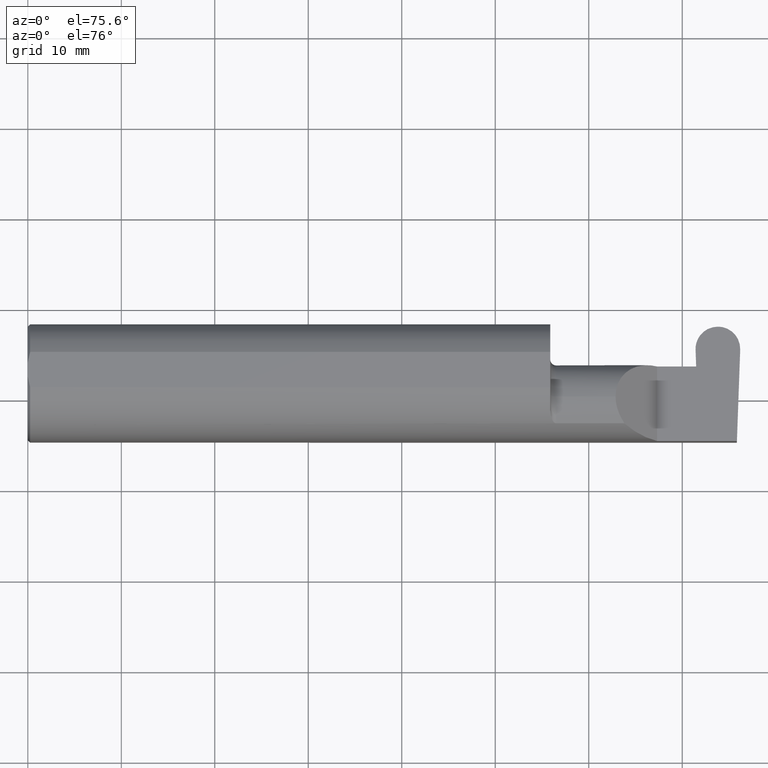
[diagram: clean part render]
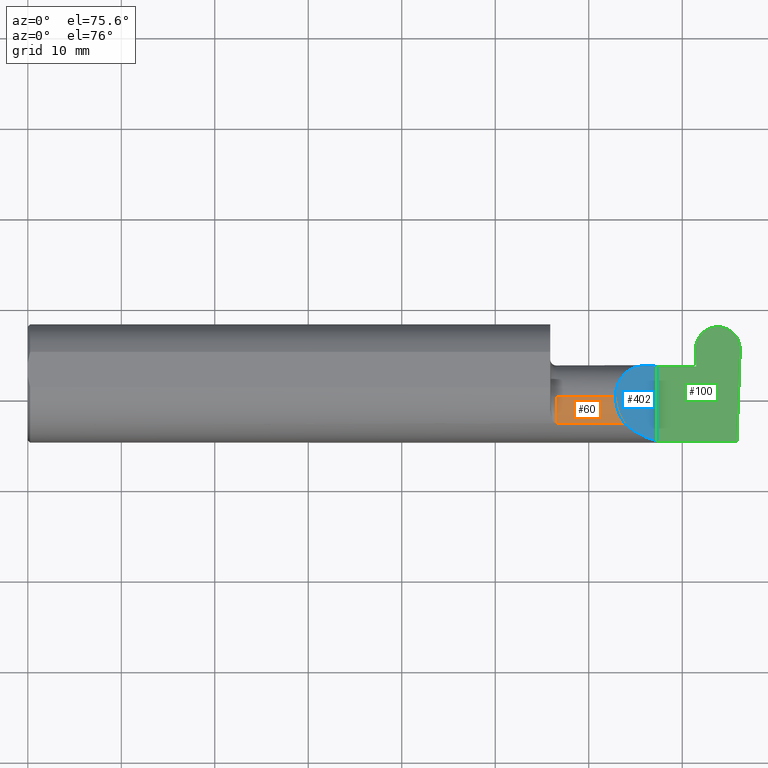
[diagram: same view with three faces highlighted in distinct colors, each labeled with its STEP entity id]
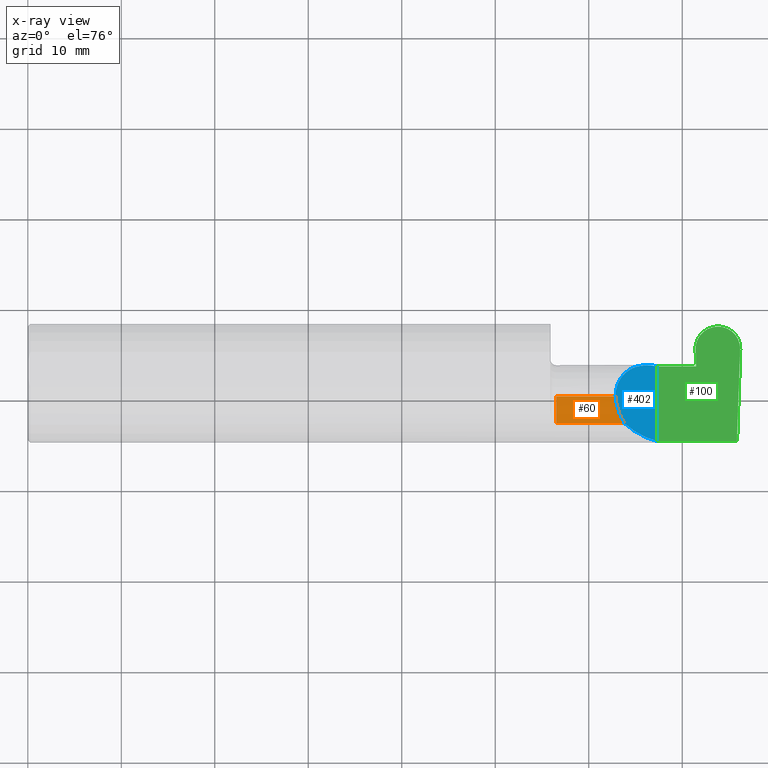
[diagram: x-ray of the same camera — body ghosted, the three highlighted faces saturated]
A machine part, auxiliary view with three faces highlighted in distinct colors.
The next image is the same camera in x-ray (body ghosted, the three faces saturated) — at least one of them is partly hidden behind the body in this view.
Their STEP definitions:

[orange] entity #60 — the highlighted cylindrical surface (partial cylindrical patch) has radius 4.445 mm, axis along (-1, -0, -0).
#20 = CARTESIAN_POINT ( 'NONE',  ( 2.511704467739031887, -0.2080850024789288877, 0.1382955322609669413 ) ) ;
#29 = ORIENTED_EDGE ( 'NONE', *, *, #774, .T. ) ;
#51 = VECTOR ( 'NONE', #525, 39.37007874015748143 ) ;
#57 = ORIENTED_EDGE ( 'NONE', *, *, #73, .T. ) ;
#60 = ADVANCED_FACE ( 'NONE', ( #639 ), #579, .T. ) ;
#61 = DIRECTION ( 'NONE',  ( 0.000000000000000000, 0.000000000000000000, 1.000000000000000000 ) ) ;
#64 = EDGE_LOOP ( 'NONE', ( #351, #57, #678, #29 ) ) ;
#73 = EDGE_CURVE ( 'NONE', #188, #95, #571, .T. ) ;
#95 = VERTEX_POINT ( 'NONE', #143 ) ;
#125 = VECTOR ( 'NONE', #757, 39.37007874015748143 ) ;
#140 = CARTESIAN_POINT ( 'NONE',  ( 2.225000000000000089, -0.1008500000000000091, 0.000000000000000000 ) ) ;
#143 = CARTESIAN_POINT ( 'NONE',  ( 2.225000000000000089, -0.1008500000000000368, 0.1750000000000000167 ) ) ;
#167 = AXIS2_PLACEMENT_3D ( 'NONE', #502, #633, #61 ) ;
#178 = VERTEX_POINT ( 'NONE', #20 ) ;
#188 = VERTEX_POINT ( 'NONE', #602 ) ;
#217 = CARTESIAN_POINT ( 'NONE',  ( 2.487690731615565642, -0.1771157075472508391, 0.1623092683844331863 ) ) ;
#255 = CARTESIAN_POINT ( 'NONE',  ( 2.200000000000000178, -0.1008500000000000091, 0.1750000000000000444 ) ) ;
#274 = DIRECTION ( 'NONE',  ( 0.000000000000000000, 0.000000000000000000, 1.000000000000000000 ) ) ;
#326 = EDGE_CURVE ( 'NONE', #178, #188, #374, .T. ) ;
#347 = VERTEX_POINT ( 'NONE', #583 ) ;
#351 = ORIENTED_EDGE ( 'NONE', *, *, #326, .T. ) ;
#374 =( BOUNDED_CURVE ( )  B_SPLINE_CURVE ( 3, ( #775, #217, #647, #408 ),
 .UNSPECIFIED., .F., .F. ) 
 B_SPLINE_CURVE_WITH_KNOTS ( ( 4, 4 ),
 ( 5.623622464215682015, 6.283185307179586232 ),
 .UNSPECIFIED. ) 
 CURVE ( )  GEOMETRIC_REPRESENTATION_ITEM ( )  RATIONAL_B_SPLINE_CURVE ( ( 1.000000000000000000, 0.9640754331822832812, 0.9640754331822832812, 1.000000000000000000 ) ) 
 REPRESENTATION_ITEM ( '' )  );
#408 = CARTESIAN_POINT ( 'NONE',  ( 2.474999999999998757, -0.1008500000000000091, 0.1750000000000000444 ) ) ;
#478 = LINE ( 'NONE', #590, #51 ) ;
#502 = CARTESIAN_POINT ( 'NONE',  ( 2.200000000000000178, -0.1008500000000000091, 0.000000000000000000 ) ) ;
#525 = DIRECTION ( 'NONE',  ( 1.000000000000000000, 0.000000000000000000, 0.000000000000000000 ) ) ;
#553 = CIRCLE ( 'NONE', #659, 0.1750000000000000167 ) ;
#571 = LINE ( 'NONE', #255, #125 ) ;
#579 = CYLINDRICAL_SURFACE ( 'NONE', #167, 0.1750000000000000444 ) ;
#583 = CARTESIAN_POINT ( 'NONE',  ( 2.225000000000000089, -0.2080850024789289987, 0.1382955322609667470 ) ) ;
#590 = CARTESIAN_POINT ( 'NONE',  ( 2.518342309999999529, -0.2080850024789289987, 0.1382955322609668025 ) ) ;
#602 = CARTESIAN_POINT ( 'NONE',  ( 2.474999999999998757, -0.1008500000000000091, 0.1750000000000000444 ) ) ;
#633 = DIRECTION ( 'NONE',  ( -1.000000000000000000, -0.000000000000000000, -0.000000000000000000 ) ) ;
#639 = FACE_OUTER_BOUND ( 'NONE', #64, .T. ) ;
#647 = CARTESIAN_POINT ( 'NONE',  ( 2.474999999999998757, -0.1400387324517230747, 0.1750000000000000444 ) ) ;
#659 = AXIS2_PLACEMENT_3D ( 'NONE', #140, #795, #274 ) ;
#678 = ORIENTED_EDGE ( 'NONE', *, *, #732, .F. ) ;
#732 = EDGE_CURVE ( 'NONE', #347, #95, #553, .T. ) ;
#757 = DIRECTION ( 'NONE',  ( -1.000000000000000000, -0.000000000000000000, -0.000000000000000000 ) ) ;
#774 = EDGE_CURVE ( 'NONE', #347, #178, #478, .T. ) ;
#775 = CARTESIAN_POINT ( 'NONE',  ( 2.511704467739031887, -0.2080850024789288877, 0.1382955322609669413 ) ) ;
#795 = DIRECTION ( 'NONE',  ( -1.000000000000000000, -0.000000000000000000, -0.000000000000000000 ) ) ;

[blue] entity #402 — the highlighted planar face has unit normal (-0.7071, 0, -0.7071).
#20 = CARTESIAN_POINT ( 'NONE',  ( 2.511704467739031887, -0.2080850024789288877, 0.1382955322609669413 ) ) ;
#36 = DIRECTION ( 'NONE',  ( -0.7071067811865439090, 0.000000000000000000, -0.7071067811865511255 ) ) ;
#46 = EDGE_CURVE ( 'NONE', #448, #178, #739, .T. ) ;
#113 = PLANE ( 'NONE',  #814 ) ;
#130 = ORIENTED_EDGE ( 'NONE', *, *, #46, .F. ) ;
#139 = DIRECTION ( 'NONE',  ( -0.000000000000000000, 1.000000000000000000, -0.000000000000000000 ) ) ;
#152 = VECTOR ( 'NONE', #139, 39.37007874015748143 ) ;
#172 = CARTESIAN_POINT ( 'NONE',  ( 2.650000000000000355, 0.07414999999999999369, 9.797174393178813824E-17 ) ) ;
#178 = VERTEX_POINT ( 'NONE', #20 ) ;
#188 = VERTEX_POINT ( 'NONE', #602 ) ;
#212 = EDGE_CURVE ( 'NONE', #448, #454, #535, .T. ) ;
#217 = CARTESIAN_POINT ( 'NONE',  ( 2.487690731615565642, -0.1771157075472508391, 0.1623092683844331863 ) ) ;
#218 = CARTESIAN_POINT ( 'NONE',  ( 2.650000000000000355, -0.2500000000000000555, 4.286263797015729199E-17 ) ) ;
#294 = CARTESIAN_POINT ( 'NONE',  ( 2.547487373415290968, 0.07415000000000000757, 0.1025126265847084162 ) ) ;
#326 = EDGE_CURVE ( 'NONE', #178, #188, #374, .T. ) ;
#328 = CARTESIAN_POINT ( 'NONE',  ( 2.511704467739031887, -0.2080850024789288877, 0.1382955322609669413 ) ) ;
#342 = CARTESIAN_POINT ( 'NONE',  ( 2.650000000000000355, 0.07414999999999999369, 9.797174393178813824E-17 ) ) ;
#374 =( BOUNDED_CURVE ( )  B_SPLINE_CURVE ( 3, ( #775, #217, #647, #408 ),
 .UNSPECIFIED., .F., .F. ) 
 B_SPLINE_CURVE_WITH_KNOTS ( ( 4, 4 ),
 ( 5.623622464215682015, 6.283185307179586232 ),
 .UNSPECIFIED. ) 
 CURVE ( )  GEOMETRIC_REPRESENTATION_ITEM ( )  RATIONAL_B_SPLINE_CURVE ( ( 1.000000000000000000, 0.9640754331822832812, 0.9640754331822832812, 1.000000000000000000 ) ) 
 REPRESENTATION_ITEM ( '' )  );
#377 = ORIENTED_EDGE ( 'NONE', *, *, #326, .F. ) ;
#379 = CARTESIAN_POINT ( 'NONE',  ( 2.650000000000000355, -0.2498499999999999610, 4.286263797015729199E-17 ) ) ;
#390 = EDGE_LOOP ( 'NONE', ( #377, #130, #663, #686 ) ) ;
#402 = ADVANCED_FACE ( 'NONE', ( #474 ), #113, .F. ) ;
#404 = CARTESIAN_POINT ( 'NONE',  ( 2.474999999999998757, 0.001662626584708354381, 0.1750000000000000167 ) ) ;
#408 = CARTESIAN_POINT ( 'NONE',  ( 2.474999999999998757, -0.1008500000000000091, 0.1750000000000000444 ) ) ;
#448 = VERTEX_POINT ( 'NONE', #679 ) ;
#454 = VERTEX_POINT ( 'NONE', #172 ) ;
#474 = FACE_OUTER_BOUND ( 'NONE', #390, .T. ) ;
#535 = LINE ( 'NONE', #218, #152 ) ;
#555 = DIRECTION ( 'NONE',  ( -0.7071067811865511255, 0.000000000000000000, 0.7071067811865439090 ) ) ;
#592 =( BOUNDED_CURVE ( )  B_SPLINE_CURVE ( 3, ( #778, #404, #294, #342 ),
 .UNSPECIFIED., .F., .F. ) 
 B_SPLINE_CURVE_WITH_KNOTS ( ( 4, 4 ),
 ( 0.000000000000000000, 1.570796326794896336 ),
 .UNSPECIFIED. ) 
 CURVE ( )  GEOMETRIC_REPRESENTATION_ITEM ( )  RATIONAL_B_SPLINE_CURVE ( ( 1.000000000000000000, 0.8047378541243650485, 0.8047378541243650485, 1.000000000000000000 ) ) 
 REPRESENTATION_ITEM ( '' )  );
#602 = CARTESIAN_POINT ( 'NONE',  ( 2.474999999999998757, -0.1008500000000000091, 0.1750000000000000444 ) ) ;
#647 = CARTESIAN_POINT ( 'NONE',  ( 2.474999999999998757, -0.1400387324517230747, 0.1750000000000000444 ) ) ;
#663 = ORIENTED_EDGE ( 'NONE', *, *, #212, .T. ) ;
#679 = CARTESIAN_POINT ( 'NONE',  ( 2.650000000000000355, -0.2498499999999999610, 4.286263797015729199E-17 ) ) ;
#686 = ORIENTED_EDGE ( 'NONE', *, *, #747, .F. ) ;
#694 = CARTESIAN_POINT ( 'NONE',  ( 2.552984868485331571, -0.2355204011147991605, 0.09701513151466779894 ) ) ;
#739 =( BOUNDED_CURVE ( )  B_SPLINE_CURVE ( 3, ( #379, #753, #694, #328 ),
 .UNSPECIFIED., .F., .F. ) 
 B_SPLINE_CURVE_WITH_KNOTS ( ( 4, 4 ),
 ( 4.712388980384689674, 5.298966915116348986 ),
 .UNSPECIFIED. ) 
 CURVE ( )  GEOMETRIC_REPRESENTATION_ITEM ( )  RATIONAL_B_SPLINE_CURVE ( ( 1.000000000000000000, 0.9715321379117536349, 0.9715321379117536349, 1.000000000000000000 ) ) 
 REPRESENTATION_ITEM ( '' )  );
#747 = EDGE_CURVE ( 'NONE', #188, #454, #592, .T. ) ;
#748 = CARTESIAN_POINT ( 'NONE',  ( 2.650000000000000355, -0.2500000000000000555, 4.286263797015729199E-17 ) ) ;
#753 = CARTESIAN_POINT ( 'NONE',  ( 2.600434159100402987, -0.2498499999999999610, 0.04956584089959713973 ) ) ;
#775 = CARTESIAN_POINT ( 'NONE',  ( 2.511704467739031887, -0.2080850024789288877, 0.1382955322609669413 ) ) ;
#778 = CARTESIAN_POINT ( 'NONE',  ( 2.474999999999998757, -0.1008500000000000091, 0.1750000000000000444 ) ) ;
#814 = AXIS2_PLACEMENT_3D ( 'NONE', #748, #36, #555 ) ;

[green] entity #100 — the highlighted planar face has unit normal (-0, 0, -1).
#2 = CARTESIAN_POINT ( 'NONE',  ( 2.962893989228886138, 0.2471500000000001196, -6.982753567311735255E-18 ) ) ;
#3 = VERTEX_POINT ( 'NONE', #136 ) ;
#19 = DIRECTION ( 'NONE',  ( -1.000000000000000000, -0.000000000000000000, -0.000000000000000000 ) ) ;
#76 = CARTESIAN_POINT ( 'NONE',  ( 2.848790630771113275, 0.2471500000000001751, 1.845438088445658575E-17 ) ) ;
#78 = EDGE_CURVE ( 'NONE', #808, #375, #443, .T. ) ;
#81 = VERTEX_POINT ( 'NONE', #585 ) ;
#82 = CARTESIAN_POINT ( 'NONE',  ( 2.811836707554793424, 0.1469935636673020407, 0.000000000000000000 ) ) ;
#99 = ORIENTED_EDGE ( 'NONE', *, *, #314, .F. ) ;
#100 = ADVANCED_FACE ( 'NONE', ( #530 ), #656, .F. ) ;
#124 = ORIENTED_EDGE ( 'NONE', *, *, #147, .F. ) ;
#131 = CARTESIAN_POINT ( 'NONE',  ( 2.905156571574672331, 0.2471499999999999808, 0.000000000000000000 ) ) ;
#132 = EDGE_LOOP ( 'NONE', ( #268, #464, #164, #541, #272, #226, #99, #124, #296 ) ) ;
#136 = CARTESIAN_POINT ( 'NONE',  ( 2.905156571574672331, 0.2471499999999999808, 0.000000000000000000 ) ) ;
#137 = CARTESIAN_POINT ( 'NONE',  ( 2.999847912445206877, 0.1469935636673019019, 0.000000000000000000 ) ) ;
#139 = DIRECTION ( 'NONE',  ( -0.000000000000000000, 1.000000000000000000, -0.000000000000000000 ) ) ;
#147 = EDGE_CURVE ( 'NONE', #383, #276, #598, .T. ) ;
#148 = DIRECTION ( 'NONE',  ( -1.000000000000000000, 0.000000000000000000, 1.224646799147351975E-16 ) ) ;
#149 = CARTESIAN_POINT ( 'NONE',  ( 2.814380460850576249, 0.07414999999999977165, 0.000000000000000000 ) ) ;
#152 = VECTOR ( 'NONE', #139, 39.37007874015748143 ) ;
#162 = DIRECTION ( 'NONE',  ( 1.000000000000000000, -0.000000000000000000, -0.000000000000000000 ) ) ;
#164 = ORIENTED_EDGE ( 'NONE', *, *, #78, .F. ) ;
#172 = CARTESIAN_POINT ( 'NONE',  ( 2.650000000000000355, 0.07414999999999999369, 9.797174393178813824E-17 ) ) ;
#175 = VERTEX_POINT ( 'NONE', #594 ) ;
#189 = DIRECTION ( 'NONE',  ( 1.000000000000000000, -0.000000000000000000, -0.000000000000000000 ) ) ;
#209 = DIRECTION ( 'NONE',  ( -0.03489949670249513358, -0.9993908270190959842, 0.000000000000000000 ) ) ;
#212 = EDGE_CURVE ( 'NONE', #448, #454, #535, .T. ) ;
#218 = CARTESIAN_POINT ( 'NONE',  ( 2.650000000000000355, -0.2500000000000000555, 4.286263797015729199E-17 ) ) ;
#226 = ORIENTED_EDGE ( 'NONE', *, *, #212, .F. ) ;
#227 =( BOUNDED_CURVE ( )  B_SPLINE_CURVE ( 3, ( #137, #695, #2, #260 ),
 .UNSPECIFIED., .F., .F. ) 
 B_SPLINE_CURVE_WITH_KNOTS ( ( 4, 4 ),
 ( 1.637964922114649946, 3.237953570749842580 ),
 .UNSPECIFIED. ) 
 CURVE ( )  GEOMETRIC_REPRESENTATION_ITEM ( )  RATIONAL_B_SPLINE_CURVE ( ( 1.000000000000000000, 0.7978071872141906384, 0.7978071872141906384, 1.000000000000000000 ) ) 
 REPRESENTATION_ITEM ( '' )  );
#260 = CARTESIAN_POINT ( 'NONE',  ( 2.906528048425327526, 0.2471499999999999808, 0.000000000000000000 ) ) ;
#268 = ORIENTED_EDGE ( 'NONE', *, *, #291, .F. ) ;
#272 = ORIENTED_EDGE ( 'NONE', *, *, #641, .F. ) ;
#276 = VERTEX_POINT ( 'NONE', #615 ) ;
#291 = EDGE_CURVE ( 'NONE', #3, #175, #734, .T. ) ;
#296 = ORIENTED_EDGE ( 'NONE', *, *, #584, .T. ) ;
#303 = EDGE_CURVE ( 'NONE', #81, #808, #419, .T. ) ;
#314 = EDGE_CURVE ( 'NONE', #276, #448, #702, .T. ) ;
#375 = VERTEX_POINT ( 'NONE', #82 ) ;
#383 = VERTEX_POINT ( 'NONE', #593 ) ;
#416 = DIRECTION ( 'NONE',  ( -0.03489949670249350294, 0.9993908270190959842, -0.000000000000000000 ) ) ;
#419 = LINE ( 'NONE', #493, #792 ) ;
#443 = LINE ( 'NONE', #699, #611 ) ;
#448 = VERTEX_POINT ( 'NONE', #679 ) ;
#454 = VERTEX_POINT ( 'NONE', #172 ) ;
#464 = ORIENTED_EDGE ( 'NONE', *, *, #556, .T. ) ;
#476 = VECTOR ( 'NONE', #162, 39.37007874015748143 ) ;
#480 =( BOUNDED_CURVE ( )  B_SPLINE_CURVE ( 3, ( #131, #76, #503, #708 ),
 .UNSPECIFIED., .F., .F. ) 
 B_SPLINE_CURVE_WITH_KNOTS ( ( 4, 4 ),
 ( 3.045231736429744540, 4.645220385064936508 ),
 .UNSPECIFIED. ) 
 CURVE ( )  GEOMETRIC_REPRESENTATION_ITEM ( )  RATIONAL_B_SPLINE_CURVE ( ( 1.000000000000000000, 0.7978071872141907495, 0.7978071872141907495, 1.000000000000000000 ) ) 
 REPRESENTATION_ITEM ( '' )  );
#493 = CARTESIAN_POINT ( 'NONE',  ( 2.814380460850576249, 0.07414999999999977165, 0.000000000000000000 ) ) ;
#503 = CARTESIAN_POINT ( 'NONE',  ( 2.809800481473789358, 0.2053034494642216323, 2.322929703798115353E-17 ) ) ;
#520 = DIRECTION ( 'NONE',  ( -1.224646799147351975E-16, 0.000000000000000000, -1.000000000000000000 ) ) ;
#530 = FACE_OUTER_BOUND ( 'NONE', #132, .T. ) ;
#535 = LINE ( 'NONE', #218, #152 ) ;
#541 = ORIENTED_EDGE ( 'NONE', *, *, #303, .F. ) ;
#556 = EDGE_CURVE ( 'NONE', #3, #375, #480, .T. ) ;
#584 = EDGE_CURVE ( 'NONE', #383, #175, #227, .T. ) ;
#585 = CARTESIAN_POINT ( 'NONE',  ( 2.803339167728504666, 0.07414999999999977165, 0.000000000000000000 ) ) ;
#593 = CARTESIAN_POINT ( 'NONE',  ( 2.999847912445206877, 0.1469935636673019019, 0.000000000000000000 ) ) ;
#594 = CARTESIAN_POINT ( 'NONE',  ( 2.906528048425327526, 0.2471499999999999808, 0.000000000000000000 ) ) ;
#598 = LINE ( 'NONE', #777, #727 ) ;
#611 = VECTOR ( 'NONE', #416, 39.37007874015748854 ) ;
#615 = CARTESIAN_POINT ( 'NONE',  ( 2.985989829834099218, -0.2498499999999999888, 0.000000000000000000 ) ) ;
#620 = AXIS2_PLACEMENT_3D ( 'NONE', #719, #520, #148 ) ;
#638 = CARTESIAN_POINT ( 'NONE',  ( 4.499279347985562423E-32, -0.2498499999999999610, 3.673940397442054938E-16 ) ) ;
#640 = DIRECTION ( 'NONE',  ( 1.000000000000000000, 0.000000000000000000, 0.000000000000000000 ) ) ;
#641 = EDGE_CURVE ( 'NONE', #454, #81, #773, .T. ) ;
#656 = PLANE ( 'NONE',  #620 ) ;
#679 = CARTESIAN_POINT ( 'NONE',  ( 2.650000000000000355, -0.2498499999999999610, 4.286263797015729199E-17 ) ) ;
#695 = CARTESIAN_POINT ( 'NONE',  ( 3.001884138526210499, 0.2053034494642216323, -1.175766972083629841E-17 ) ) ;
#699 = CARTESIAN_POINT ( 'NONE',  ( 2.811741978320692059, 0.1497062540083303195, 0.000000000000000000 ) ) ;
#702 = LINE ( 'NONE', #638, #713 ) ;
#708 = CARTESIAN_POINT ( 'NONE',  ( 2.811836707554793424, 0.1469935636673020407, 0.000000000000000000 ) ) ;
#713 = VECTOR ( 'NONE', #19, 39.37007874015748143 ) ;
#719 = CARTESIAN_POINT ( 'NONE',  ( 3.000000000000000444, -0.2500000000000000555, 0.000000000000000000 ) ) ;
#727 = VECTOR ( 'NONE', #209, 39.37007874015748143 ) ;
#728 = VECTOR ( 'NONE', #640, 39.37007874015748143 ) ;
#734 = LINE ( 'NONE', #740, #476 ) ;
#740 = CARTESIAN_POINT ( 'NONE',  ( -0.002039370078740339320, 0.2471499999999999808, 0.000000000000000000 ) ) ;
#765 = CARTESIAN_POINT ( 'NONE',  ( 2.200000000000000178, 0.07414999999999999369, 9.797174393178813824E-17 ) ) ;
#773 = LINE ( 'NONE', #765, #728 ) ;
#777 = CARTESIAN_POINT ( 'NONE',  ( 2.999942641679308242, 0.1497062540083303195, 0.000000000000000000 ) ) ;
#792 = VECTOR ( 'NONE', #189, 39.37007874015748143 ) ;
#808 = VERTEX_POINT ( 'NONE', #149 ) ;